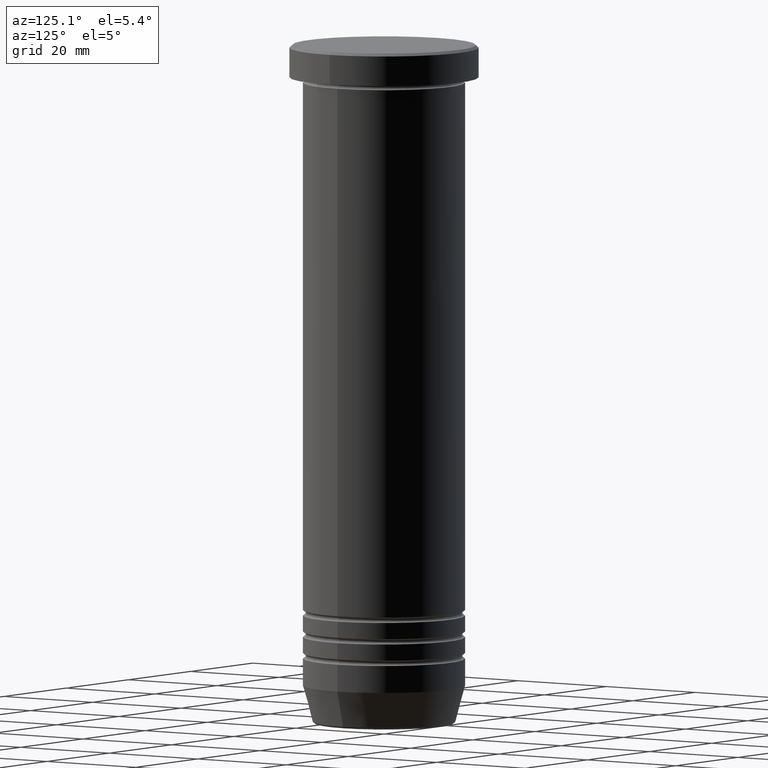
[diagram: clean part render]
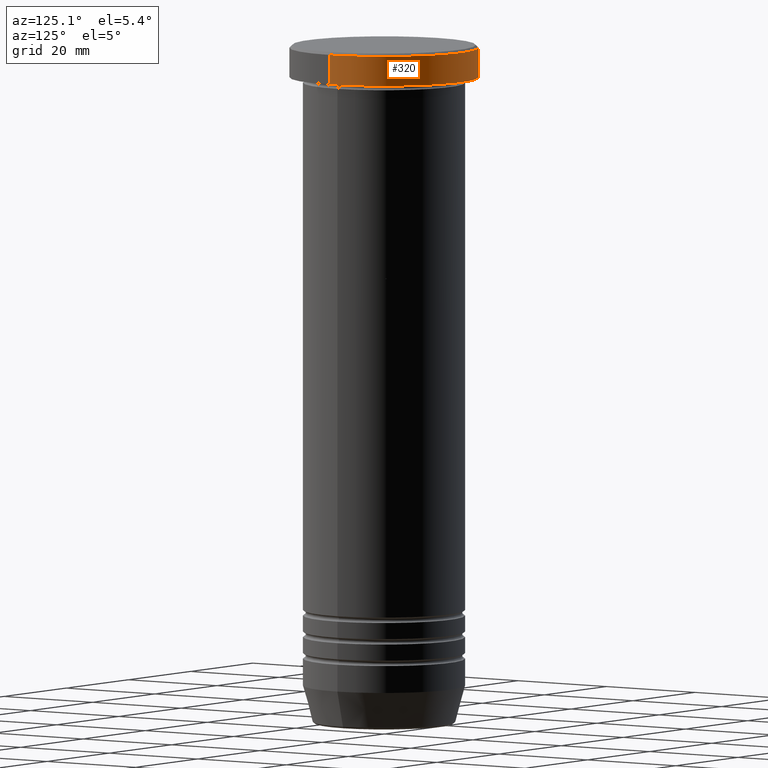
[diagram: same view with one face highlighted and labeled with its STEP entity id]
A machine part, auxiliary view. The second image highlights one B-rep face of the part: STEP entity #320.
In plain terms, the highlighted cylindrical surface (partial cylindrical patch) has radius 17.5 mm, axis along (-0, -0, 1).
Its self-contained STEP definition (entity closure, byte-faithful):
#8 = VECTOR ( 'NONE', #413, 1000.000000000000000 ) ;
#57 = CARTESIAN_POINT ( 'NONE',  ( -17.50000000000000000, 2.143131898507868248E-15, 0.000000000000000000 ) ) ;
#71 = DIRECTION ( 'NONE',  ( 1.000000000000000000, 0.000000000000000000, 0.000000000000000000 ) ) ;
#81 = CARTESIAN_POINT ( 'NONE',  ( -17.50000000000000000, 2.143131898507868248E-15, -5.999999999999999112 ) ) ;
#102 = EDGE_CURVE ( 'NONE', #964, #267, #159, .T. ) ;
#159 = LINE ( 'NONE', #579, #522 ) ;
#185 = ORIENTED_EDGE ( 'NONE', *, *, #102, .F. ) ;
#198 = VERTEX_POINT ( 'NONE', #81 ) ;
#254 = EDGE_CURVE ( 'NONE', #964, #198, #872, .T. ) ;
#267 = VERTEX_POINT ( 'NONE', #628 ) ;
#278 = ORIENTED_EDGE ( 'NONE', *, *, #254, .T. ) ;
#299 = DIRECTION ( 'NONE',  ( 1.000000000000000000, 0.000000000000000000, 0.000000000000000000 ) ) ;
#320 = ADVANCED_FACE ( 'NONE', ( #391 ), #727, .T. ) ;
#391 = FACE_OUTER_BOUND ( 'NONE', #616, .T. ) ;
#399 = CARTESIAN_POINT ( 'NONE',  ( -17.50000000000000000, 2.143131898507868248E-15, -0.5000000000000073275 ) ) ;
#413 = DIRECTION ( 'NONE',  ( -0.000000000000000000, -0.000000000000000000, 1.000000000000000000 ) ) ;
#473 = ORIENTED_EDGE ( 'NONE', *, *, #899, .T. ) ;
#501 = DIRECTION ( 'NONE',  ( -0.000000000000000000, -0.000000000000000000, 1.000000000000000000 ) ) ;
#522 = VECTOR ( 'NONE', #940, 1000.000000000000000 ) ;
#552 = AXIS2_PLACEMENT_3D ( 'NONE', #562, #1088, #299 ) ;
#562 = CARTESIAN_POINT ( 'NONE',  ( 0.000000000000000000, 0.000000000000000000, 0.000000000000000000 ) ) ;
#579 = CARTESIAN_POINT ( 'NONE',  ( 17.50000000000000000, 0.000000000000000000, 0.000000000000000000 ) ) ;
#590 = CARTESIAN_POINT ( 'NONE',  ( 0.000000000000000000, 0.000000000000000000, -0.5000000000000073275 ) ) ;
#616 = EDGE_LOOP ( 'NONE', ( #278, #1025, #473, #185 ) ) ;
#628 = CARTESIAN_POINT ( 'NONE',  ( 17.50000000000000000, 0.000000000000000000, -0.5000000000000073275 ) ) ;
#727 = CYLINDRICAL_SURFACE ( 'NONE', #552, 17.50000000000000000 ) ;
#739 = VERTEX_POINT ( 'NONE', #399 ) ;
#781 = CIRCLE ( 'NONE', #965, 17.50000000000000000 ) ;
#870 = CARTESIAN_POINT ( 'NONE',  ( 17.50000000000000000, 0.000000000000000000, -5.999999999999999112 ) ) ;
#872 = CIRCLE ( 'NONE', #962, 17.50000000000000000 ) ;
#899 = EDGE_CURVE ( 'NONE', #739, #267, #781, .T. ) ;
#918 = EDGE_CURVE ( 'NONE', #198, #739, #1039, .T. ) ;
#932 = DIRECTION ( 'NONE',  ( 1.000000000000000000, 0.000000000000000000, 0.000000000000000000 ) ) ;
#940 = DIRECTION ( 'NONE',  ( -0.000000000000000000, -0.000000000000000000, 1.000000000000000000 ) ) ;
#944 = DIRECTION ( 'NONE',  ( 0.000000000000000000, 0.000000000000000000, -1.000000000000000000 ) ) ;
#962 = AXIS2_PLACEMENT_3D ( 'NONE', #1060, #501, #71 ) ;
#964 = VERTEX_POINT ( 'NONE', #870 ) ;
#965 = AXIS2_PLACEMENT_3D ( 'NONE', #590, #944, #932 ) ;
#1025 = ORIENTED_EDGE ( 'NONE', *, *, #918, .T. ) ;
#1039 = LINE ( 'NONE', #57, #8 ) ;
#1060 = CARTESIAN_POINT ( 'NONE',  ( 0.000000000000000000, 0.000000000000000000, -5.999999999999999112 ) ) ;
#1088 = DIRECTION ( 'NONE',  ( -0.000000000000000000, -0.000000000000000000, 1.000000000000000000 ) ) ;